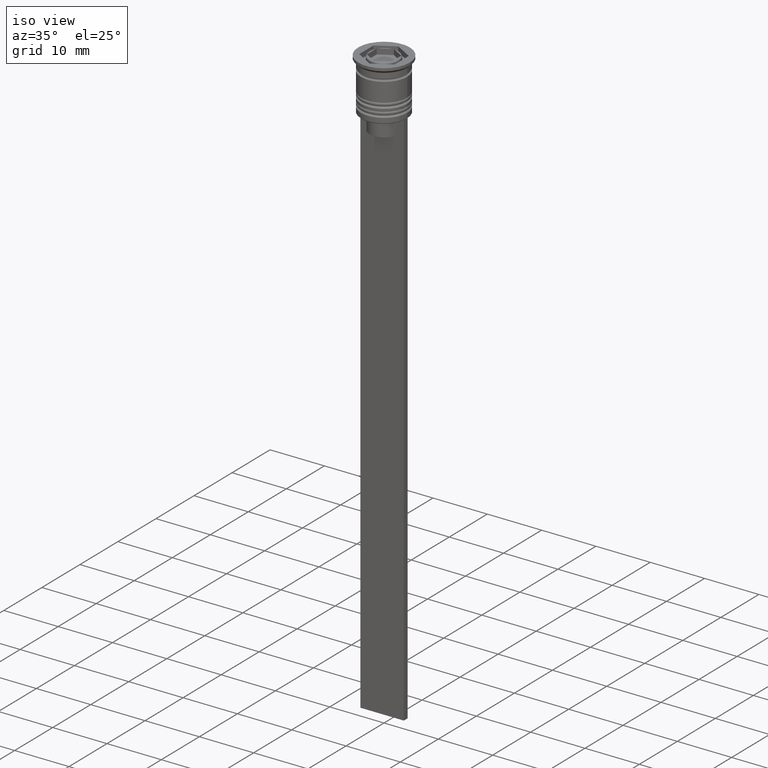
[diagram: clean part render]
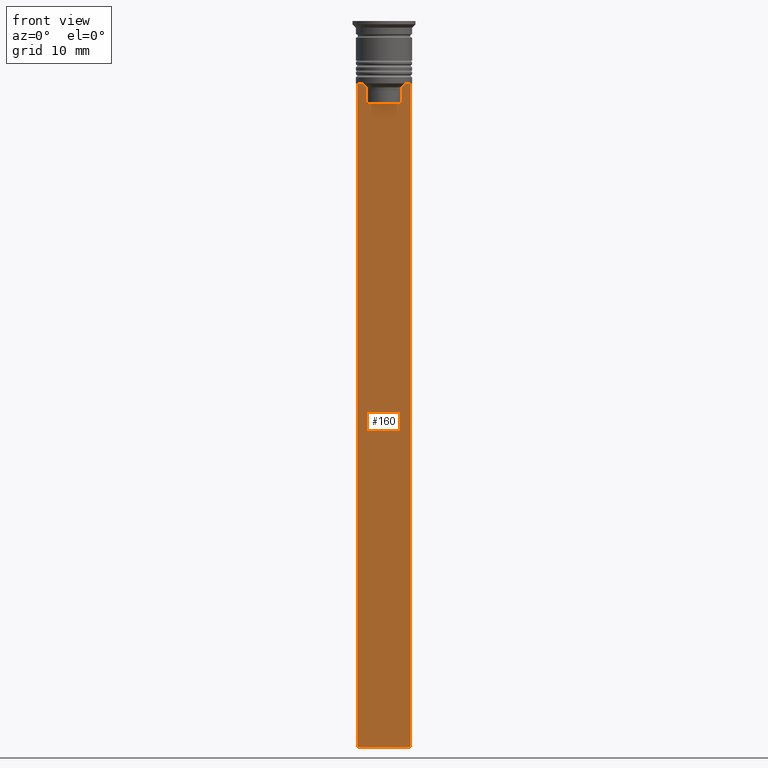
[diagram: tour spotlight — one face highlighted and labeled with its STEP entity id]
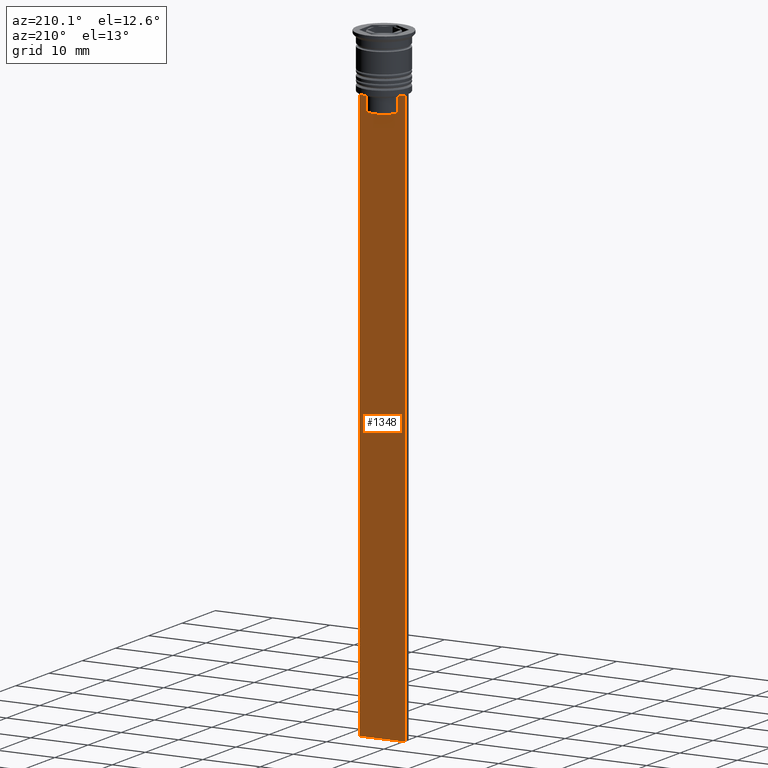
[diagram: tour spotlight — one face highlighted and labeled with its STEP entity id]
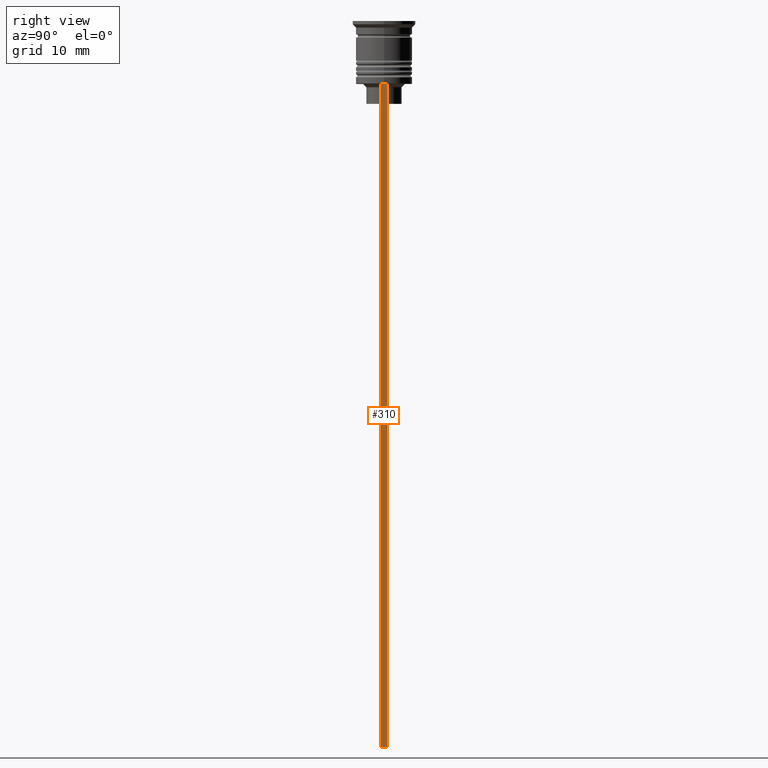
[diagram: tour spotlight — one face highlighted and labeled with its STEP entity id]
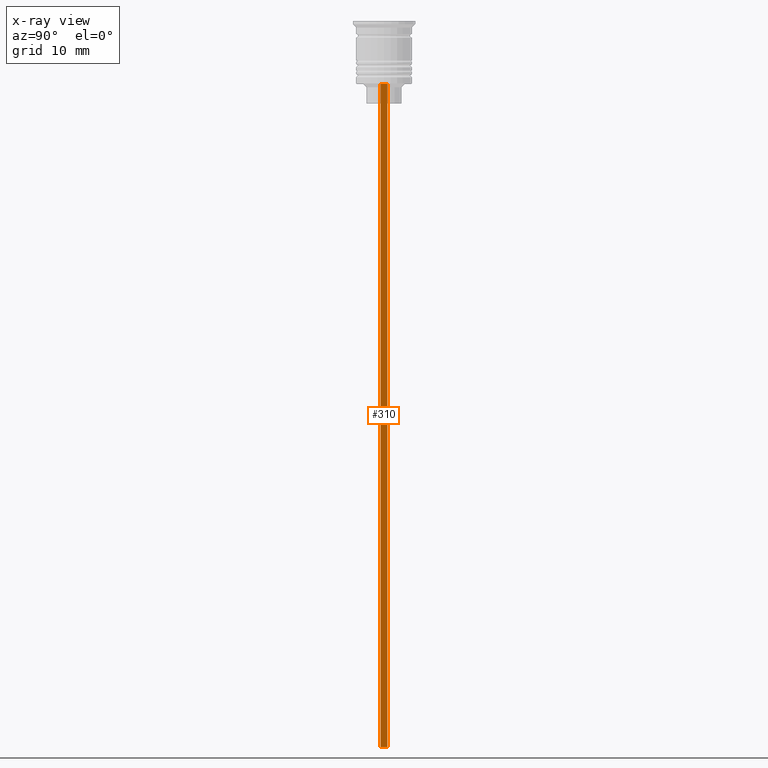
[diagram: x-ray of the same camera — body ghosted, this tour face saturated]
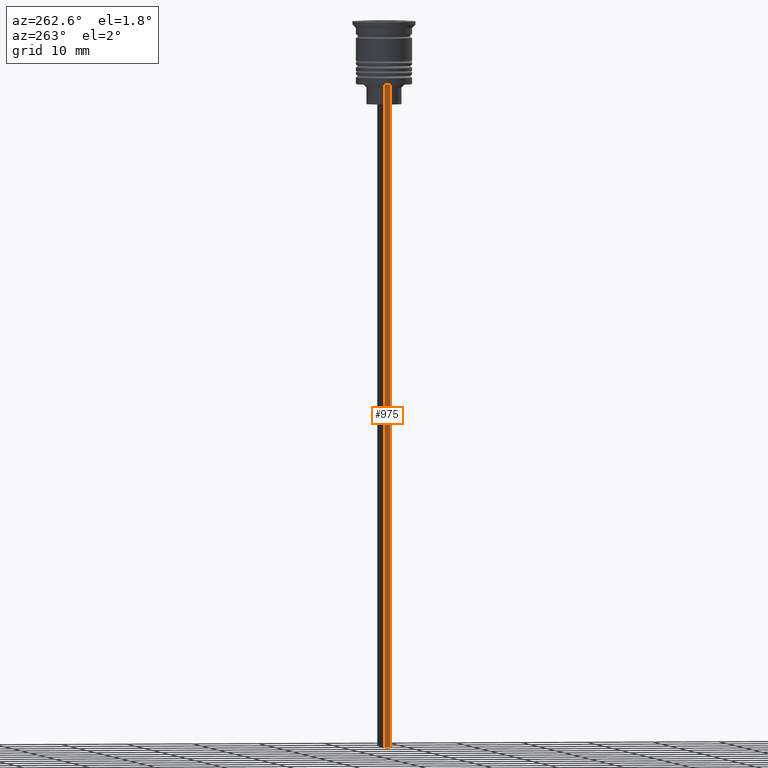
[diagram: tour spotlight — one face highlighted and labeled with its STEP entity id]
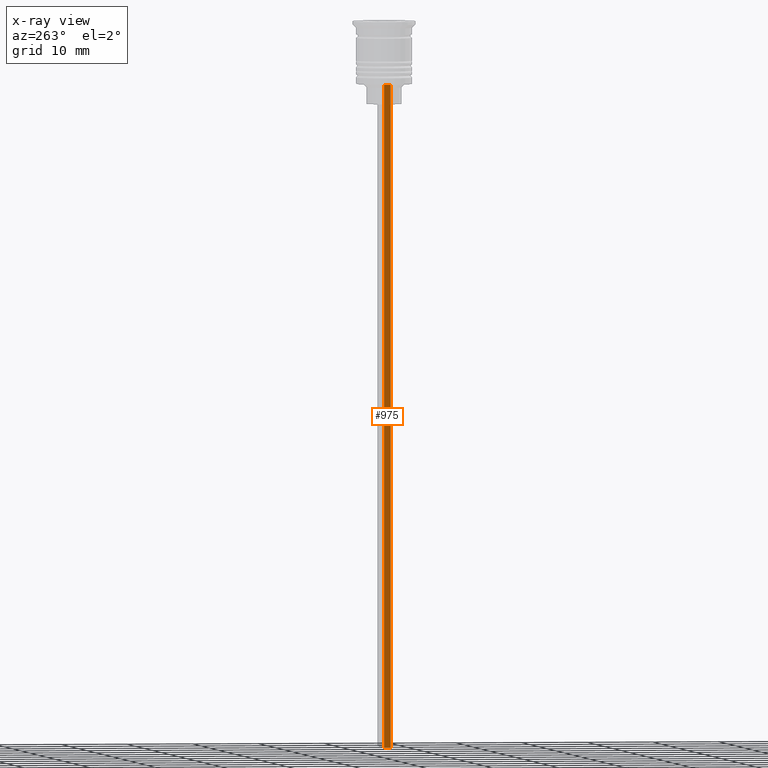
[diagram: x-ray of the same camera — body ghosted, this tour face saturated]
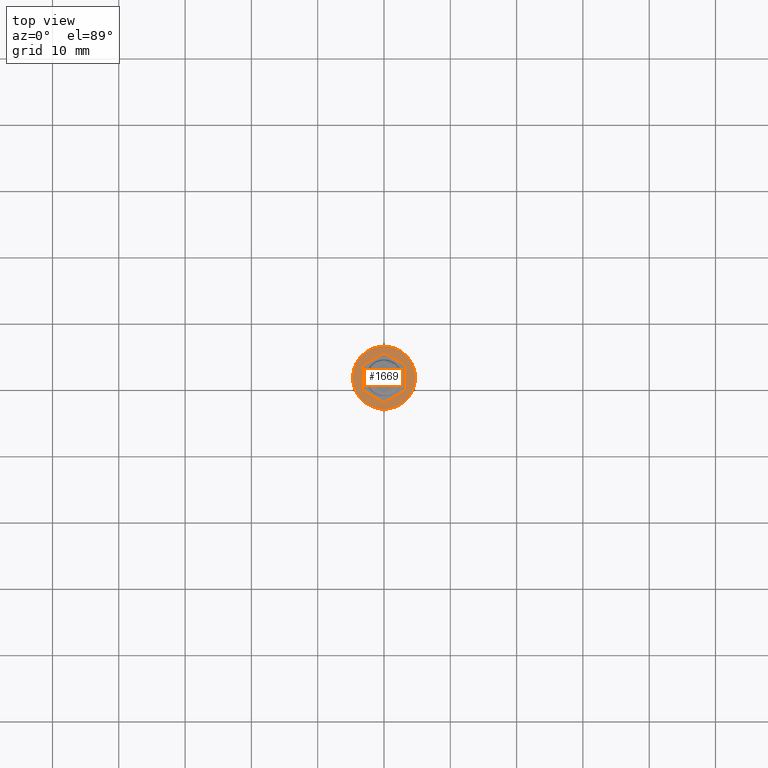
[diagram: tour spotlight — one face highlighted and labeled with its STEP entity id]
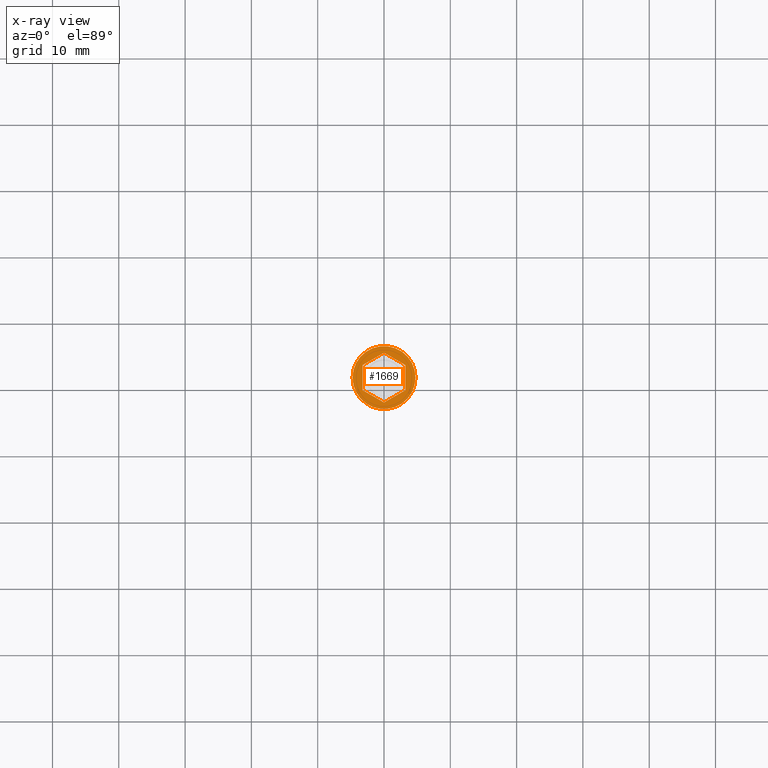
[diagram: x-ray of the same camera — body ghosted, this tour face saturated]
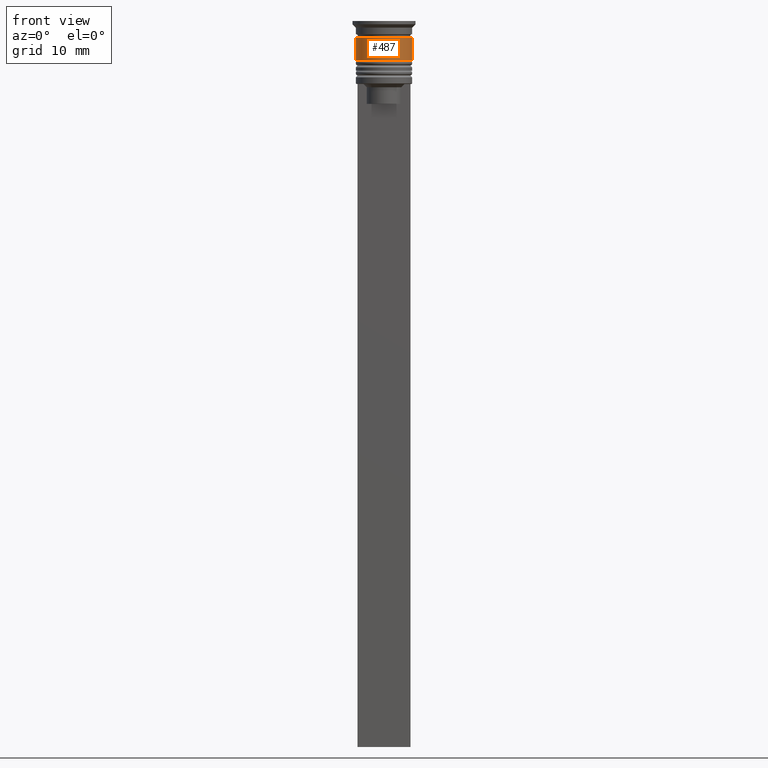
[diagram: tour spotlight — one face highlighted and labeled with its STEP entity id]
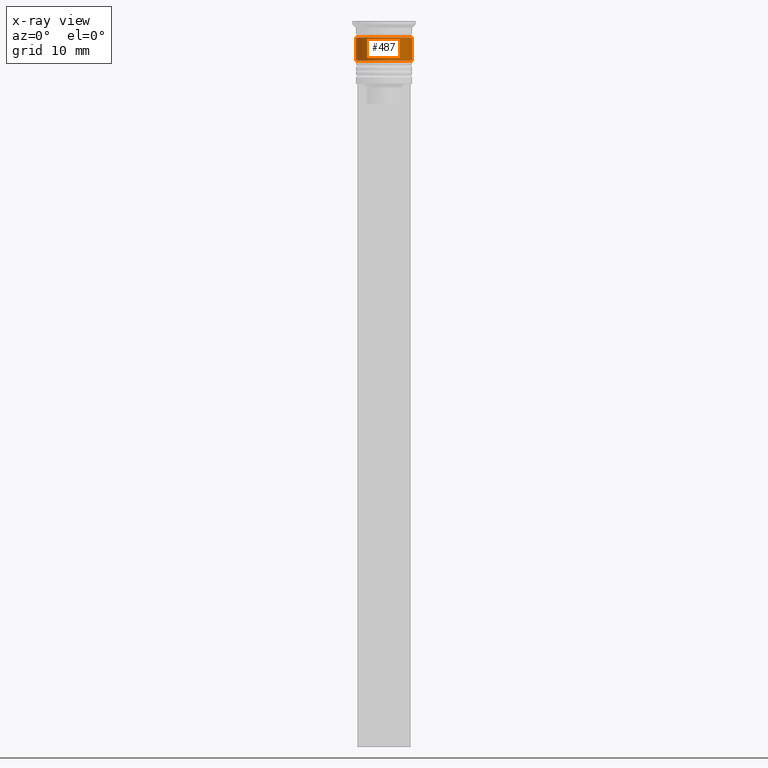
[diagram: x-ray of the same camera — body ghosted, this tour face saturated]
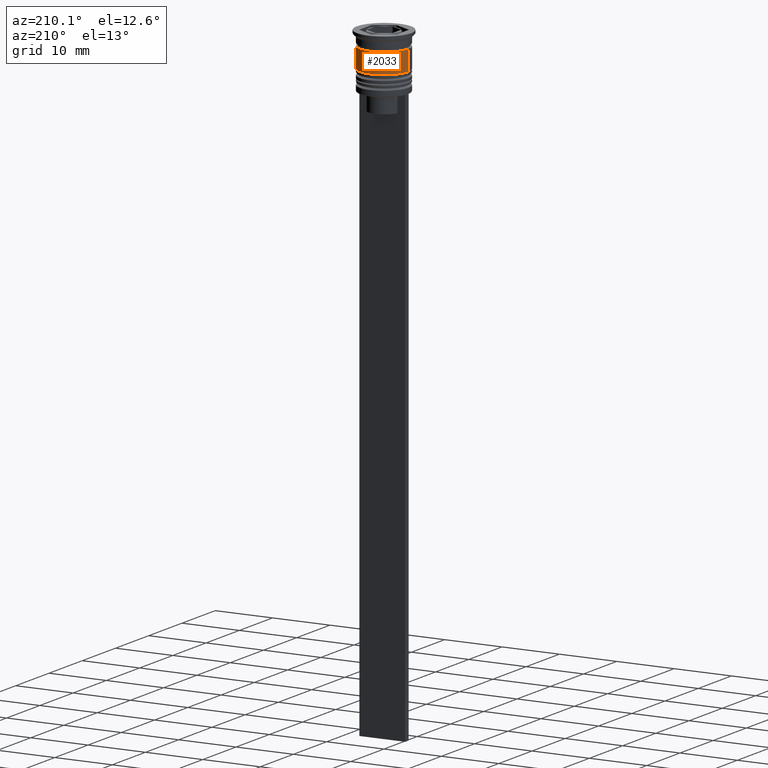
[diagram: tour spotlight — one face highlighted and labeled with its STEP entity id]
A machine part: a face-by-face anatomy tour. The part has 83 B-rep faces; the first image is the clean iso view, then the 7 largest visible faces are spotlighted one at a time (largest first), each with its STEP entity span.

Face 1 — front view, entity #160. In plain terms, the highlighted planar face has unit normal (0, -1, -0).
Definition (entity closure, byte-faithful):
#29 = ORIENTED_EDGE ( 'NONE', *, *, #219, .F. ) ;
#84 = VECTOR ( 'NONE', #498, 1000.000000000000000 ) ;
#95 = CARTESIAN_POINT ( 'NONE',  ( -2.602402735934616906, -0.5000000000000004441, -10.00000000000000178 ) ) ;
#116 = CARTESIAN_POINT ( 'NONE',  ( -2.602402735934616906, -0.5000000000000004441, -10.00000000000000178 ) ) ;
#147 = CARTESIAN_POINT ( 'NONE',  ( 2.602402735934616906, -0.5000000000000004441, -10.00000000000000178 ) ) ;
#160 = ADVANCED_FACE ( 'NONE', ( #1331 ), #609, .T. ) ;
#219 = EDGE_CURVE ( 'NONE', #1419, #1842, #630, .T. ) ;
#243 = VERTEX_POINT ( 'NONE', #116 ) ;
#246 = EDGE_CURVE ( 'NONE', #1842, #802, #1769, .T. ) ;
#249 = CARTESIAN_POINT ( 'NONE',  ( -3.999999999999994671, -0.5000000000000004441, -9.500000000000000000 ) ) ;
#277 = CARTESIAN_POINT ( 'NONE',  ( 4.000000000000005329, -0.5000000000000004441, -9.500000000000000000 ) ) ;
#280 = VECTOR ( 'NONE', #1616, 1000.000000000000000 ) ;
#281 = CARTESIAN_POINT ( 'NONE',  ( 2.602402735934616906, -0.5000000000000004441, -10.00000000000000178 ) ) ;
#290 = DIRECTION ( 'NONE',  ( 0.000000000000000000, 0.000000000000000000, -1.000000000000000000 ) ) ;
#325 = VECTOR ( 'NONE', #1550, 1000.000000000000000 ) ;
#420 = DIRECTION ( 'NONE',  ( 0.000000000000000000, -1.000000000000000000, -0.000000000000000000 ) ) ;
#426 = AXIS2_PLACEMENT_3D ( 'NONE', #1339, #420, #940 ) ;
#498 = DIRECTION ( 'NONE',  ( 1.000000000000000000, 0.000000000000000000, 0.000000000000000000 ) ) ;
#507 = EDGE_LOOP ( 'NONE', ( #1234, #1928, #1048, #1132, #29, #1145, #1780, #1420, #1497, #1200 ) ) ;
#510 = CARTESIAN_POINT ( 'NONE',  ( -3.110064308016796453, -0.5000000000000004441, -9.500000000000000000 ) ) ;
#522 = VERTEX_POINT ( 'NONE', #563 ) ;
#559 = VECTOR ( 'NONE', #1925, 1000.000000000000000 ) ;
#563 = CARTESIAN_POINT ( 'NONE',  ( -3.110064308016796453, -0.5000000000000004441, -9.500000000000000000 ) ) ;
#574 = CARTESIAN_POINT ( 'NONE',  ( 4.000000000000005329, -0.5000000000000004441, -9.500000000000000000 ) ) ;
#609 = PLANE ( 'NONE',  #426 ) ;
#611 = VERTEX_POINT ( 'NONE', #249 ) ;
#630 = LINE ( 'NONE', #1743, #1898 ) ;
#640 = CARTESIAN_POINT ( 'NONE',  ( 3.110064308016796453, -0.5000000000000004441, -9.500000000000000000 ) ) ;
#654 = CARTESIAN_POINT ( 'NONE',  ( 4.000000000000005329, -0.5000000000000004441, -109.5000000000000000 ) ) ;
#662 = EDGE_CURVE ( 'NONE', #611, #522, #1027, .T. ) ;
#781 = CARTESIAN_POINT ( 'NONE',  ( -2.602402735934616906, -0.5000000000000004441, -12.50000000000000000 ) ) ;
#802 = VERTEX_POINT ( 'NONE', #1428 ) ;
#820 = LINE ( 'NONE', #1352, #325 ) ;
#842 = LINE ( 'NONE', #1382, #559 ) ;
#867 = CARTESIAN_POINT ( 'NONE',  ( -2.941047749529104749, -0.5000000000000004441, -9.666873766989334982 ) ) ;
#884 = CARTESIAN_POINT ( 'NONE',  ( -2.771866350855961336, -0.5000000000000004441, -9.833580160334840059 ) ) ;
#940 = DIRECTION ( 'NONE',  ( 0.000000000000000000, 0.000000000000000000, -1.000000000000000000 ) ) ;
#1027 = LINE ( 'NONE', #2316, #2025 ) ;
#1031 = LINE ( 'NONE', #2311, #280 ) ;
#1048 = ORIENTED_EDGE ( 'NONE', *, *, #1861, .T. ) ;
#1057 = LINE ( 'NONE', #2118, #84 ) ;
#1081 = EDGE_CURVE ( 'NONE', #2187, #2136, #1057, .T. ) ;
#1085 = EDGE_CURVE ( 'NONE', #522, #243, #1480, .T. ) ;
#1112 = EDGE_CURVE ( 'NONE', #2136, #2003, #842, .T. ) ;
#1118 = EDGE_CURVE ( 'NONE', #1518, #1419, #2321, .T. ) ;
#1132 = ORIENTED_EDGE ( 'NONE', *, *, #246, .F. ) ;
#1139 = EDGE_CURVE ( 'NONE', #243, #2187, #1031, .T. ) ;
#1145 = ORIENTED_EDGE ( 'NONE', *, *, #1118, .F. ) ;
#1200 = ORIENTED_EDGE ( 'NONE', *, *, #1139, .F. ) ;
#1234 = ORIENTED_EDGE ( 'NONE', *, *, #1085, .F. ) ;
#1331 = FACE_OUTER_BOUND ( 'NONE', #507, .T. ) ;
#1334 = EDGE_CURVE ( 'NONE', #2003, #1518, #2201, .T. ) ;
#1339 = CARTESIAN_POINT ( 'NONE',  ( 4.000000000000005329, -0.5000000000000004441, -1.437742251701450202 ) ) ;
#1351 = VECTOR ( 'NONE', #1381, 1000.000000000000000 ) ;
#1352 = CARTESIAN_POINT ( 'NONE',  ( -3.999999999999994671, -0.5000000000000004441, -1.437742251701450202 ) ) ;
#1381 = DIRECTION ( 'NONE',  ( -1.000000000000000000, 0.000000000000000000, 0.000000000000000000 ) ) ;
#1382 = CARTESIAN_POINT ( 'NONE',  ( 2.602402735934616906, -0.5000000000000004441, 0.000000000000000000 ) ) ;
#1419 = VERTEX_POINT ( 'NONE', #574 ) ;
#1420 = ORIENTED_EDGE ( 'NONE', *, *, #1112, .F. ) ;
#1428 = CARTESIAN_POINT ( 'NONE',  ( -3.999999999999994671, -0.5000000000000004441, -109.5000000000000000 ) ) ;
#1435 = VECTOR ( 'NONE', #1976, 1000.000000000000000 ) ;
#1480 = B_SPLINE_CURVE_WITH_KNOTS ( 'NONE', 3,
 ( #510, #867, #884, #95 ),
 .UNSPECIFIED., .F., .F.,
 ( 4, 4 ),
 ( 0.005378271293598281544, 0.006090816219556000749 ),
 .UNSPECIFIED. ) ;
#1497 = ORIENTED_EDGE ( 'NONE', *, *, #1081, .F. ) ;
#1518 = VERTEX_POINT ( 'NONE', #640 ) ;
#1550 = DIRECTION ( 'NONE',  ( 0.000000000000000000, 0.000000000000000000, -1.000000000000000000 ) ) ;
#1616 = DIRECTION ( 'NONE',  ( 0.000000000000000000, 0.000000000000000000, -1.000000000000000000 ) ) ;
#1626 = CARTESIAN_POINT ( 'NONE',  ( 2.771864055700302476, -0.5000000000000004441, -9.833582414266679450 ) ) ;
#1681 = CARTESIAN_POINT ( 'NONE',  ( 2.602402735934616906, -0.5000000000000004441, -12.50000000000000000 ) ) ;
#1731 = CARTESIAN_POINT ( 'NONE',  ( 3.110064308016796453, -0.5000000000000004441, -9.500000000000000000 ) ) ;
#1737 = CARTESIAN_POINT ( 'NONE',  ( 4.000000000000005329, -0.5000000000000004441, -109.5000000000000000 ) ) ;
#1743 = CARTESIAN_POINT ( 'NONE',  ( 4.000000000000005329, -0.5000000000000004441, -1.437742251701450202 ) ) ;
#1769 = LINE ( 'NONE', #654, #1351 ) ;
#1780 = ORIENTED_EDGE ( 'NONE', *, *, #1334, .F. ) ;
#1842 = VERTEX_POINT ( 'NONE', #1737 ) ;
#1861 = EDGE_CURVE ( 'NONE', #611, #802, #820, .T. ) ;
#1898 = VECTOR ( 'NONE', #290, 1000.000000000000000 ) ;
#1925 = DIRECTION ( 'NONE',  ( -0.000000000000000000, -0.000000000000000000, 1.000000000000000000 ) ) ;
#1928 = ORIENTED_EDGE ( 'NONE', *, *, #662, .F. ) ;
#1976 = DIRECTION ( 'NONE',  ( 1.000000000000000000, 0.000000000000000000, 0.000000000000000000 ) ) ;
#2003 = VERTEX_POINT ( 'NONE', #281 ) ;
#2025 = VECTOR ( 'NONE', #2279, 1000.000000000000000 ) ;
#2118 = CARTESIAN_POINT ( 'NONE',  ( 0.000000000000000000, -0.5000000000000004441, -12.50000000000000000 ) ) ;
#2136 = VERTEX_POINT ( 'NONE', #1681 ) ;
#2187 = VERTEX_POINT ( 'NONE', #781 ) ;
#2201 = B_SPLINE_CURVE_WITH_KNOTS ( 'NONE', 3,
 ( #147, #1626, #2242, #1731 ),
 .UNSPECIFIED., .F., .F.,
 ( 4, 4 ),
 ( 0.01295151922336847811, 0.01367164596165162602 ),
 .UNSPECIFIED. ) ;
#2242 = CARTESIAN_POINT ( 'NONE',  ( 2.941045828809988549, -0.5000000000000004441, -9.666875663357577864 ) ) ;
#2279 = DIRECTION ( 'NONE',  ( 1.000000000000000000, 0.000000000000000000, 0.000000000000000000 ) ) ;
#2311 = CARTESIAN_POINT ( 'NONE',  ( -2.602402735934616906, -0.5000000000000004441, 0.000000000000000000 ) ) ;
#2316 = CARTESIAN_POINT ( 'NONE',  ( 4.000000000000005329, -0.5000000000000004441, -9.500000000000000000 ) ) ;
#2321 = LINE ( 'NONE', #277, #1435 ) ;

Face 2 — auxiliary view, entity #1348. In plain terms, the highlighted planar face has unit normal (0, -1, -0).
Definition (entity closure, byte-faithful):
#17 = EDGE_CURVE ( 'NONE', #405, #533, #2043, .T. ) ;
#44 = FACE_OUTER_BOUND ( 'NONE', #1503, .T. ) ;
#75 = LINE ( 'NONE', #2332, #1289 ) ;
#117 = ORIENTED_EDGE ( 'NONE', *, *, #1705, .T. ) ;
#118 = CARTESIAN_POINT ( 'NONE',  ( -3.110064308016796897, 0.4999999999999995559, -9.500000000000000000 ) ) ;
#155 = VERTEX_POINT ( 'NONE', #1690 ) ;
#188 = VERTEX_POINT ( 'NONE', #642 ) ;
#204 = VECTOR ( 'NONE', #2116, 1000.000000000000000 ) ;
#228 = B_SPLINE_CURVE_WITH_KNOTS ( 'NONE', 3,
 ( #2013, #1089, #2026, #2347 ),
 .UNSPECIFIED., .F., .F.,
 ( 4, 4 ),
 ( 0.01295151922336847637, 0.01367164596165162602 ),
 .UNSPECIFIED. ) ;
#304 = CARTESIAN_POINT ( 'NONE',  ( -2.771866350855961780, 0.4999999999999995559, -9.833580160334840059 ) ) ;
#393 = EDGE_CURVE ( 'NONE', #1565, #405, #228, .T. ) ;
#405 = VERTEX_POINT ( 'NONE', #1832 ) ;
#409 = CARTESIAN_POINT ( 'NONE',  ( 4.000000000000005329, 0.4999999999999995559, -109.5000000000000000 ) ) ;
#423 = ORIENTED_EDGE ( 'NONE', *, *, #1041, .T. ) ;
#459 = ORIENTED_EDGE ( 'NONE', *, *, #393, .T. ) ;
#463 = CARTESIAN_POINT ( 'NONE',  ( -3.110064308016796897, 0.4999999999999995559, -9.500000000000000000 ) ) ;
#465 = LINE ( 'NONE', #1571, #910 ) ;
#476 = VECTOR ( 'NONE', #2250, 1000.000000000000000 ) ;
#486 = CARTESIAN_POINT ( 'NONE',  ( 2.602402735934617350, 0.4999999999999995559, -12.50000000000000000 ) ) ;
#494 = ORIENTED_EDGE ( 'NONE', *, *, #926, .T. ) ;
#528 = ORIENTED_EDGE ( 'NONE', *, *, #618, .T. ) ;
#533 = VERTEX_POINT ( 'NONE', #1296 ) ;
#538 = CARTESIAN_POINT ( 'NONE',  ( 4.000000000000005329, 0.4999999999999995559, -9.500000000000000000 ) ) ;
#567 = ORIENTED_EDGE ( 'NONE', *, *, #17, .T. ) ;
#618 = EDGE_CURVE ( 'NONE', #1122, #1565, #1344, .T. ) ;
#639 = CARTESIAN_POINT ( 'NONE',  ( -2.602402735934617350, 0.4999999999999995559, 0.000000000000000000 ) ) ;
#642 = CARTESIAN_POINT ( 'NONE',  ( -2.602402735934617350, 0.4999999999999995559, -12.50000000000000000 ) ) ;
#661 = CARTESIAN_POINT ( 'NONE',  ( 2.602402735934617350, 0.4999999999999995559, 0.000000000000000000 ) ) ;
#669 = CARTESIAN_POINT ( 'NONE',  ( -3.999999999999994671, 0.4999999999999995559, -109.5000000000000000 ) ) ;
#675 = VERTEX_POINT ( 'NONE', #463 ) ;
#727 = EDGE_CURVE ( 'NONE', #1109, #188, #1581, .T. ) ;
#735 = ORIENTED_EDGE ( 'NONE', *, *, #1153, .T. ) ;
#804 = CARTESIAN_POINT ( 'NONE',  ( 4.000000000000005329, 0.4999999999999995559, -1.437742251701450202 ) ) ;
#814 = DIRECTION ( 'NONE',  ( 0.000000000000000000, 0.000000000000000000, -1.000000000000000000 ) ) ;
#816 = CARTESIAN_POINT ( 'NONE',  ( 4.000000000000005329, 0.4999999999999995559, -1.437742251701450202 ) ) ;
#857 = ORIENTED_EDGE ( 'NONE', *, *, #727, .T. ) ;
#874 = AXIS2_PLACEMENT_3D ( 'NONE', #804, #2074, #814 ) ;
#910 = VECTOR ( 'NONE', #1207, 1000.000000000000000 ) ;
#926 = EDGE_CURVE ( 'NONE', #533, #2199, #1755, .T. ) ;
#990 = DIRECTION ( 'NONE',  ( -0.000000000000000000, -0.000000000000000000, 1.000000000000000000 ) ) ;
#1001 = DIRECTION ( 'NONE',  ( 0.000000000000000000, 0.000000000000000000, -1.000000000000000000 ) ) ;
#1004 = CARTESIAN_POINT ( 'NONE',  ( -2.602402735934617350, 0.4999999999999995559, -10.00000000000000178 ) ) ;
#1041 = EDGE_CURVE ( 'NONE', #188, #1122, #465, .T. ) ;
#1089 = CARTESIAN_POINT ( 'NONE',  ( 2.771864055700302476, 0.4999999999999995559, -9.833582414266677674 ) ) ;
#1109 = VERTEX_POINT ( 'NONE', #1004 ) ;
#1119 = VERTEX_POINT ( 'NONE', #669 ) ;
#1122 = VERTEX_POINT ( 'NONE', #486 ) ;
#1133 = VECTOR ( 'NONE', #990, 1000.000000000000000 ) ;
#1153 = EDGE_CURVE ( 'NONE', #675, #1109, #1913, .T. ) ;
#1207 = DIRECTION ( 'NONE',  ( 1.000000000000000000, 0.000000000000000000, 0.000000000000000000 ) ) ;
#1233 = ORIENTED_EDGE ( 'NONE', *, *, #1530, .F. ) ;
#1277 = LINE ( 'NONE', #1468, #2258 ) ;
#1289 = VECTOR ( 'NONE', #1001, 1000.000000000000000 ) ;
#1296 = CARTESIAN_POINT ( 'NONE',  ( 4.000000000000005329, 0.4999999999999995559, -9.500000000000000000 ) ) ;
#1338 = EDGE_CURVE ( 'NONE', #2199, #1119, #1812, .T. ) ;
#1344 = LINE ( 'NONE', #661, #1133 ) ;
#1348 = ADVANCED_FACE ( 'NONE', ( #44 ), #1697, .F. ) ;
#1367 = DIRECTION ( 'NONE',  ( 0.000000000000000000, 0.000000000000000000, -1.000000000000000000 ) ) ;
#1388 = VECTOR ( 'NONE', #2030, 1000.000000000000000 ) ;
#1468 = CARTESIAN_POINT ( 'NONE',  ( 4.000000000000005329, 0.4999999999999995559, -9.500000000000000000 ) ) ;
#1503 = EDGE_LOOP ( 'NONE', ( #117, #735, #857, #423, #528, #459, #567, #494, #1609, #1233 ) ) ;
#1530 = EDGE_CURVE ( 'NONE', #155, #1119, #75, .T. ) ;
#1565 = VERTEX_POINT ( 'NONE', #2115 ) ;
#1571 = CARTESIAN_POINT ( 'NONE',  ( 0.000000000000000000, 0.4999999999999995559, -12.50000000000000000 ) ) ;
#1581 = LINE ( 'NONE', #639, #1749 ) ;
#1604 = CARTESIAN_POINT ( 'NONE',  ( -2.602402735934617350, 0.4999999999999995559, -10.00000000000000178 ) ) ;
#1609 = ORIENTED_EDGE ( 'NONE', *, *, #1338, .T. ) ;
#1690 = CARTESIAN_POINT ( 'NONE',  ( -3.999999999999994671, 0.4999999999999997780, -9.500000000000000000 ) ) ;
#1697 = PLANE ( 'NONE',  #874 ) ;
#1705 = EDGE_CURVE ( 'NONE', #155, #675, #1277, .T. ) ;
#1749 = VECTOR ( 'NONE', #1367, 1000.000000000000000 ) ;
#1755 = LINE ( 'NONE', #816, #204 ) ;
#1812 = LINE ( 'NONE', #409, #476 ) ;
#1832 = CARTESIAN_POINT ( 'NONE',  ( 3.110064308016796897, 0.4999999999999995559, -9.500000000000000000 ) ) ;
#1913 = B_SPLINE_CURVE_WITH_KNOTS ( 'NONE', 3,
 ( #118, #2348, #304, #1604 ),
 .UNSPECIFIED., .F., .F.,
 ( 4, 4 ),
 ( 0.005378271293598279809, 0.006090816219555997280 ),
 .UNSPECIFIED. ) ;
#1986 = DIRECTION ( 'NONE',  ( 1.000000000000000000, 0.000000000000000000, 0.000000000000000000 ) ) ;
#2013 = CARTESIAN_POINT ( 'NONE',  ( 2.602402735934617350, 0.4999999999999995559, -10.00000000000000178 ) ) ;
#2026 = CARTESIAN_POINT ( 'NONE',  ( 2.941045828809989438, 0.4999999999999995559, -9.666875663357577864 ) ) ;
#2030 = DIRECTION ( 'NONE',  ( 1.000000000000000000, 0.000000000000000000, 0.000000000000000000 ) ) ;
#2043 = LINE ( 'NONE', #538, #1388 ) ;
#2074 = DIRECTION ( 'NONE',  ( 0.000000000000000000, -1.000000000000000000, -0.000000000000000000 ) ) ;
#2076 = CARTESIAN_POINT ( 'NONE',  ( 4.000000000000005329, 0.4999999999999995559, -109.5000000000000000 ) ) ;
#2115 = CARTESIAN_POINT ( 'NONE',  ( 2.602402735934617350, 0.4999999999999995559, -10.00000000000000178 ) ) ;
#2116 = DIRECTION ( 'NONE',  ( 0.000000000000000000, 0.000000000000000000, -1.000000000000000000 ) ) ;
#2199 = VERTEX_POINT ( 'NONE', #2076 ) ;
#2250 = DIRECTION ( 'NONE',  ( -1.000000000000000000, 0.000000000000000000, 0.000000000000000000 ) ) ;
#2258 = VECTOR ( 'NONE', #1986, 1000.000000000000000 ) ;
#2332 = CARTESIAN_POINT ( 'NONE',  ( -3.999999999999994671, 0.4999999999999995559, -1.437742251701450202 ) ) ;
#2347 = CARTESIAN_POINT ( 'NONE',  ( 3.110064308016796897, 0.4999999999999995559, -9.500000000000000000 ) ) ;
#2348 = CARTESIAN_POINT ( 'NONE',  ( -2.941047749529105193, 0.4999999999999995559, -9.666873766989334982 ) ) ;

Face 3 — right view, entity #310. An x-ray twin of the same camera follows (body ghosted, this face saturated) — the face is partly hidden behind the body. In plain terms, the highlighted planar face has unit normal (-1, 0, 0).
Definition (entity closure, byte-faithful):
#77 = AXIS2_PLACEMENT_3D ( 'NONE', #1962, #302, #1040 ) ;
#204 = VECTOR ( 'NONE', #2116, 1000.000000000000000 ) ;
#219 = EDGE_CURVE ( 'NONE', #1419, #1842, #630, .T. ) ;
#224 = ORIENTED_EDGE ( 'NONE', *, *, #926, .F. ) ;
#290 = DIRECTION ( 'NONE',  ( 0.000000000000000000, 0.000000000000000000, -1.000000000000000000 ) ) ;
#300 = DIRECTION ( 'NONE',  ( 0.000000000000000000, 1.000000000000000000, 0.000000000000000000 ) ) ;
#302 = DIRECTION ( 'NONE',  ( -1.000000000000000000, 0.000000000000000000, 0.000000000000000000 ) ) ;
#310 = ADVANCED_FACE ( 'NONE', ( #666 ), #484, .F. ) ;
#484 = PLANE ( 'NONE',  #77 ) ;
#533 = VERTEX_POINT ( 'NONE', #1296 ) ;
#574 = CARTESIAN_POINT ( 'NONE',  ( 4.000000000000005329, -0.5000000000000004441, -9.500000000000000000 ) ) ;
#630 = LINE ( 'NONE', #1743, #1898 ) ;
#666 = FACE_OUTER_BOUND ( 'NONE', #787, .T. ) ;
#754 = CARTESIAN_POINT ( 'NONE',  ( 4.000000000000005329, -0.5000000000000004441, -9.500000000000000000 ) ) ;
#787 = EDGE_LOOP ( 'NONE', ( #224, #2312, #1957, #1761 ) ) ;
#816 = CARTESIAN_POINT ( 'NONE',  ( 4.000000000000005329, 0.4999999999999995559, -1.437742251701450202 ) ) ;
#828 = VECTOR ( 'NONE', #300, 1000.000000000000000 ) ;
#926 = EDGE_CURVE ( 'NONE', #533, #2199, #1755, .T. ) ;
#1040 = DIRECTION ( 'NONE',  ( 0.000000000000000000, 0.000000000000000000, 1.000000000000000000 ) ) ;
#1137 = VECTOR ( 'NONE', #1375, 1000.000000000000000 ) ;
#1177 = LINE ( 'NONE', #754, #1137 ) ;
#1296 = CARTESIAN_POINT ( 'NONE',  ( 4.000000000000005329, 0.4999999999999995559, -9.500000000000000000 ) ) ;
#1375 = DIRECTION ( 'NONE',  ( 0.000000000000000000, -1.000000000000000000, 0.000000000000000000 ) ) ;
#1419 = VERTEX_POINT ( 'NONE', #574 ) ;
#1596 = EDGE_CURVE ( 'NONE', #1842, #2199, #1947, .T. ) ;
#1737 = CARTESIAN_POINT ( 'NONE',  ( 4.000000000000005329, -0.5000000000000004441, -109.5000000000000000 ) ) ;
#1743 = CARTESIAN_POINT ( 'NONE',  ( 4.000000000000005329, -0.5000000000000004441, -1.437742251701450202 ) ) ;
#1755 = LINE ( 'NONE', #816, #204 ) ;
#1761 = ORIENTED_EDGE ( 'NONE', *, *, #1596, .T. ) ;
#1762 = EDGE_CURVE ( 'NONE', #533, #1419, #1177, .T. ) ;
#1842 = VERTEX_POINT ( 'NONE', #1737 ) ;
#1898 = VECTOR ( 'NONE', #290, 1000.000000000000000 ) ;
#1947 = LINE ( 'NONE', #1960, #828 ) ;
#1957 = ORIENTED_EDGE ( 'NONE', *, *, #219, .T. ) ;
#1960 = CARTESIAN_POINT ( 'NONE',  ( 4.000000000000005329, -0.5000000000000004441, -109.5000000000000000 ) ) ;
#1962 = CARTESIAN_POINT ( 'NONE',  ( 4.000000000000005329, -0.5000000000000004441, -1.437742251701450202 ) ) ;
#2076 = CARTESIAN_POINT ( 'NONE',  ( 4.000000000000005329, 0.4999999999999995559, -109.5000000000000000 ) ) ;
#2116 = DIRECTION ( 'NONE',  ( 0.000000000000000000, 0.000000000000000000, -1.000000000000000000 ) ) ;
#2199 = VERTEX_POINT ( 'NONE', #2076 ) ;
#2312 = ORIENTED_EDGE ( 'NONE', *, *, #1762, .T. ) ;

Face 4 — auxiliary view, entity #975. An x-ray twin of the same camera follows (body ghosted, this face saturated) — the face is partly hidden behind the body. In plain terms, the highlighted planar face has unit normal (-1, 0, 0).
Definition (entity closure, byte-faithful):
#75 = LINE ( 'NONE', #2332, #1289 ) ;
#138 = CARTESIAN_POINT ( 'NONE',  ( -3.999999999999994671, -0.5000000000000004441, -109.5000000000000000 ) ) ;
#155 = VERTEX_POINT ( 'NONE', #1690 ) ;
#199 = DIRECTION ( 'NONE',  ( 0.000000000000000000, -1.000000000000000000, 0.000000000000000000 ) ) ;
#249 = CARTESIAN_POINT ( 'NONE',  ( -3.999999999999994671, -0.5000000000000004441, -9.500000000000000000 ) ) ;
#293 = DIRECTION ( 'NONE',  ( 0.000000000000000000, 1.000000000000000000, 0.000000000000000000 ) ) ;
#325 = VECTOR ( 'NONE', #1550, 1000.000000000000000 ) ;
#455 = FACE_OUTER_BOUND ( 'NONE', #620, .T. ) ;
#483 = DIRECTION ( 'NONE',  ( 0.000000000000000000, 0.000000000000000000, 1.000000000000000000 ) ) ;
#611 = VERTEX_POINT ( 'NONE', #249 ) ;
#620 = EDGE_LOOP ( 'NONE', ( #725, #1335, #1966, #1846 ) ) ;
#669 = CARTESIAN_POINT ( 'NONE',  ( -3.999999999999994671, 0.4999999999999995559, -109.5000000000000000 ) ) ;
#670 = LINE ( 'NONE', #138, #1023 ) ;
#725 = ORIENTED_EDGE ( 'NONE', *, *, #2095, .F. ) ;
#802 = VERTEX_POINT ( 'NONE', #1428 ) ;
#820 = LINE ( 'NONE', #1352, #325 ) ;
#975 = ADVANCED_FACE ( 'NONE', ( #455 ), #1002, .T. ) ;
#1001 = DIRECTION ( 'NONE',  ( 0.000000000000000000, 0.000000000000000000, -1.000000000000000000 ) ) ;
#1002 = PLANE ( 'NONE',  #1553 ) ;
#1023 = VECTOR ( 'NONE', #293, 1000.000000000000000 ) ;
#1039 = CARTESIAN_POINT ( 'NONE',  ( -3.999999999999994671, -0.5000000000000004441, -1.437742251701450202 ) ) ;
#1119 = VERTEX_POINT ( 'NONE', #669 ) ;
#1254 = VECTOR ( 'NONE', #199, 1000.000000000000000 ) ;
#1273 = CARTESIAN_POINT ( 'NONE',  ( -3.999999999999994671, -0.5000000000000004441, -9.500000000000000000 ) ) ;
#1289 = VECTOR ( 'NONE', #1001, 1000.000000000000000 ) ;
#1335 = ORIENTED_EDGE ( 'NONE', *, *, #1530, .T. ) ;
#1352 = CARTESIAN_POINT ( 'NONE',  ( -3.999999999999994671, -0.5000000000000004441, -1.437742251701450202 ) ) ;
#1393 = DIRECTION ( 'NONE',  ( -1.000000000000000000, 0.000000000000000000, 0.000000000000000000 ) ) ;
#1428 = CARTESIAN_POINT ( 'NONE',  ( -3.999999999999994671, -0.5000000000000004441, -109.5000000000000000 ) ) ;
#1530 = EDGE_CURVE ( 'NONE', #155, #1119, #75, .T. ) ;
#1550 = DIRECTION ( 'NONE',  ( 0.000000000000000000, 0.000000000000000000, -1.000000000000000000 ) ) ;
#1553 = AXIS2_PLACEMENT_3D ( 'NONE', #1039, #1393, #483 ) ;
#1690 = CARTESIAN_POINT ( 'NONE',  ( -3.999999999999994671, 0.4999999999999997780, -9.500000000000000000 ) ) ;
#1846 = ORIENTED_EDGE ( 'NONE', *, *, #1861, .F. ) ;
#1861 = EDGE_CURVE ( 'NONE', #611, #802, #820, .T. ) ;
#1869 = LINE ( 'NONE', #1273, #1254 ) ;
#1966 = ORIENTED_EDGE ( 'NONE', *, *, #2305, .F. ) ;
#2095 = EDGE_CURVE ( 'NONE', #155, #611, #1869, .T. ) ;
#2305 = EDGE_CURVE ( 'NONE', #802, #1119, #670, .T. ) ;
#2332 = CARTESIAN_POINT ( 'NONE',  ( -3.999999999999994671, 0.4999999999999995559, -1.437742251701450202 ) ) ;

Face 5 — top view, entity #1669. An x-ray twin of the same camera follows (body ghosted, this face saturated) — the face is partly hidden behind the body. In plain terms, the highlighted planar face has unit normal (0, -0, 1).
Definition (entity closure, byte-faithful):
#41 = EDGE_CURVE ( 'NONE', #412, #294, #586, .T. ) ;
#182 = EDGE_LOOP ( 'NONE', ( #2077, #622 ) ) ;
#257 = ORIENTED_EDGE ( 'NONE', *, *, #2054, .F. ) ;
#267 = LINE ( 'NONE', #1072, #564 ) ;
#278 = DIRECTION ( 'NONE',  ( 1.000000000000000000, 0.000000000000000000, 0.000000000000000000 ) ) ;
#294 = VERTEX_POINT ( 'NONE', #2285 ) ;
#329 = ORIENTED_EDGE ( 'NONE', *, *, #2349, .F. ) ;
#344 = CARTESIAN_POINT ( 'NONE',  ( -2.112280747572084180E-16, -3.752776749732567918, 0.000000000000000000 ) ) ;
#348 = DIRECTION ( 'NONE',  ( 0.8660254037844387076, -0.4999999999999998890, 0.000000000000000000 ) ) ;
#412 = VERTEX_POINT ( 'NONE', #1461 ) ;
#458 = CARTESIAN_POINT ( 'NONE',  ( 0.000000000000000000, 0.000000000000000000, 0.000000000000000000 ) ) ;
#480 = VECTOR ( 'NONE', #1692, 1000.000000000000000 ) ;
#499 = CARTESIAN_POINT ( 'NONE',  ( 3.250000000000000444, -1.876388374866283515, 0.000000000000000000 ) ) ;
#552 = VECTOR ( 'NONE', #1316, 1000.000000000000000 ) ;
#564 = VECTOR ( 'NONE', #1386, 1000.000000000000000 ) ;
#578 = ORIENTED_EDGE ( 'NONE', *, *, #1882, .F. ) ;
#586 = LINE ( 'NONE', #1879, #552 ) ;
#622 = ORIENTED_EDGE ( 'NONE', *, *, #2381, .T. ) ;
#637 = DIRECTION ( 'NONE',  ( 1.000000000000000000, 0.000000000000000000, 0.000000000000000000 ) ) ;
#673 = CARTESIAN_POINT ( 'NONE',  ( 4.750000000000000000, 0.000000000000000000, 0.000000000000000000 ) ) ;
#714 = CIRCLE ( 'NONE', #1557, 4.750000000000000000 ) ;
#740 = LINE ( 'NONE', #1807, #948 ) ;
#799 = ORIENTED_EDGE ( 'NONE', *, *, #883, .F. ) ;
#835 = CARTESIAN_POINT ( 'NONE',  ( -4.750000000000000000, 5.817072295949927426E-16, 0.000000000000000000 ) ) ;
#883 = EDGE_CURVE ( 'NONE', #1197, #412, #2164, .T. ) ;
#905 = CARTESIAN_POINT ( 'NONE',  ( 3.250000000000000444, -1.876388374866283515, 0.000000000000000000 ) ) ;
#928 = DIRECTION ( 'NONE',  ( 1.000000000000000000, 0.000000000000000000, 0.000000000000000000 ) ) ;
#948 = VECTOR ( 'NONE', #348, 1000.000000000000114 ) ;
#986 = VERTEX_POINT ( 'NONE', #1192 ) ;
#1066 = FACE_OUTER_BOUND ( 'NONE', #182, .T. ) ;
#1072 = CARTESIAN_POINT ( 'NONE',  ( -3.250000000000000444, 1.876388374866282627, 0.000000000000000000 ) ) ;
#1087 = PLANE ( 'NONE',  #2140 ) ;
#1192 = CARTESIAN_POINT ( 'NONE',  ( -2.112280747572084180E-16, -3.752776749732567918, 0.000000000000000000 ) ) ;
#1197 = VERTEX_POINT ( 'NONE', #2158 ) ;
#1223 = VERTEX_POINT ( 'NONE', #905 ) ;
#1225 = CARTESIAN_POINT ( 'NONE',  ( -3.250000000000000444, -1.876388374866284625, 0.000000000000000000 ) ) ;
#1316 = DIRECTION ( 'NONE',  ( -0.8660254037844385966, -0.5000000000000001110, 0.000000000000000000 ) ) ;
#1365 = DIRECTION ( 'NONE',  ( -0.000000000000000000, -0.000000000000000000, 1.000000000000000000 ) ) ;
#1386 = DIRECTION ( 'NONE',  ( 0.000000000000000000, -1.000000000000000000, 0.000000000000000000 ) ) ;
#1407 = DIRECTION ( 'NONE',  ( -0.8660254037844388186, 0.4999999999999997224, 0.000000000000000000 ) ) ;
#1418 = CARTESIAN_POINT ( 'NONE',  ( 0.000000000000000000, 0.000000000000000000, 0.000000000000000000 ) ) ;
#1458 = FACE_BOUND ( 'NONE', #1978, .T. ) ;
#1461 = CARTESIAN_POINT ( 'NONE',  ( 0.000000000000000000, 3.752776749732567030, 0.000000000000000000 ) ) ;
#1481 = LINE ( 'NONE', #344, #480 ) ;
#1488 = CIRCLE ( 'NONE', #1803, 4.750000000000000000 ) ;
#1557 = AXIS2_PLACEMENT_3D ( 'NONE', #1726, #1365, #637 ) ;
#1587 = DIRECTION ( 'NONE',  ( 2.311253228826398661E-16, 1.000000000000000000, 0.000000000000000000 ) ) ;
#1594 = CARTESIAN_POINT ( 'NONE',  ( 3.250000000000001332, 1.876388374866284181, 0.000000000000000000 ) ) ;
#1635 = DIRECTION ( 'NONE',  ( 0.000000000000000000, -0.000000000000000000, 1.000000000000000000 ) ) ;
#1662 = EDGE_CURVE ( 'NONE', #2278, #986, #740, .T. ) ;
#1669 = ADVANCED_FACE ( 'NONE', ( #1458, #1066 ), #1087, .T. ) ;
#1692 = DIRECTION ( 'NONE',  ( 0.8660254037844385966, 0.5000000000000001110, 0.000000000000000000 ) ) ;
#1726 = CARTESIAN_POINT ( 'NONE',  ( 0.000000000000000000, 0.000000000000000000, 0.000000000000000000 ) ) ;
#1803 = AXIS2_PLACEMENT_3D ( 'NONE', #458, #2148, #278 ) ;
#1807 = CARTESIAN_POINT ( 'NONE',  ( -3.250000000000000444, -1.876388374866284625, 0.000000000000000000 ) ) ;
#1824 = VERTEX_POINT ( 'NONE', #835 ) ;
#1853 = EDGE_CURVE ( 'NONE', #2012, #1824, #714, .T. ) ;
#1879 = CARTESIAN_POINT ( 'NONE',  ( 0.000000000000000000, 3.752776749732567030, 0.000000000000000000 ) ) ;
#1882 = EDGE_CURVE ( 'NONE', #294, #2278, #267, .T. ) ;
#1909 = VECTOR ( 'NONE', #1587, 1000.000000000000000 ) ;
#1924 = ORIENTED_EDGE ( 'NONE', *, *, #41, .F. ) ;
#1965 = LINE ( 'NONE', #499, #1909 ) ;
#1978 = EDGE_LOOP ( 'NONE', ( #799, #329, #257, #2069, #578, #1924 ) ) ;
#2012 = VERTEX_POINT ( 'NONE', #673 ) ;
#2054 = EDGE_CURVE ( 'NONE', #986, #1223, #1481, .T. ) ;
#2069 = ORIENTED_EDGE ( 'NONE', *, *, #1662, .F. ) ;
#2077 = ORIENTED_EDGE ( 'NONE', *, *, #1853, .T. ) ;
#2140 = AXIS2_PLACEMENT_3D ( 'NONE', #1418, #1635, #928 ) ;
#2148 = DIRECTION ( 'NONE',  ( -0.000000000000000000, -0.000000000000000000, 1.000000000000000000 ) ) ;
#2158 = CARTESIAN_POINT ( 'NONE',  ( 3.250000000000001332, 1.876388374866284181, 0.000000000000000000 ) ) ;
#2164 = LINE ( 'NONE', #1594, #2253 ) ;
#2253 = VECTOR ( 'NONE', #1407, 1000.000000000000000 ) ;
#2278 = VERTEX_POINT ( 'NONE', #1225 ) ;
#2285 = CARTESIAN_POINT ( 'NONE',  ( -3.250000000000000444, 1.876388374866282627, 0.000000000000000000 ) ) ;
#2349 = EDGE_CURVE ( 'NONE', #1223, #1197, #1965, .T. ) ;
#2381 = EDGE_CURVE ( 'NONE', #1824, #2012, #1488, .T. ) ;

Face 6 — front view, entity #487. An x-ray twin of the same camera follows (body ghosted, this face saturated) — the face is partly hidden behind the body. In plain terms, the highlighted cylindrical surface (edge-blend (fillet) strip) has radius 4.25 mm, axis along (-0, -0, 1).
Definition (entity closure, byte-faithful):
#65 = CARTESIAN_POINT ( 'NONE',  ( -4.250000000000000888, 5.204748896376251685E-16, -6.000000000000000000 ) ) ;
#85 = DIRECTION ( 'NONE',  ( 1.000000000000000000, 0.000000000000000000, 0.000000000000000000 ) ) ;
#166 = DIRECTION ( 'NONE',  ( -0.000000000000000000, -0.000000000000000000, 1.000000000000000000 ) ) ;
#256 = CARTESIAN_POINT ( 'NONE',  ( 0.000000000000000000, 0.000000000000000000, -2.500000000000000000 ) ) ;
#287 = DIRECTION ( 'NONE',  ( -0.000000000000000000, -0.000000000000000000, 1.000000000000000000 ) ) ;
#335 = VERTEX_POINT ( 'NONE', #2168 ) ;
#404 = VECTOR ( 'NONE', #1121, 1000.000000000000000 ) ;
#487 = ADVANCED_FACE ( 'NONE', ( #1687 ), #1125, .T. ) ;
#569 = LINE ( 'NONE', #772, #404 ) ;
#589 = ORIENTED_EDGE ( 'NONE', *, *, #712, .T. ) ;
#594 = DIRECTION ( 'NONE',  ( -0.000000000000000000, -0.000000000000000000, 1.000000000000000000 ) ) ;
#689 = CARTESIAN_POINT ( 'NONE',  ( 4.250000000000000000, 0.000000000000000000, 0.000000000000000000 ) ) ;
#712 = EDGE_CURVE ( 'NONE', #1460, #335, #1901, .T. ) ;
#726 = LINE ( 'NONE', #689, #1940 ) ;
#772 = CARTESIAN_POINT ( 'NONE',  ( -4.250000000000000000, 5.204748896376250699E-16, 0.000000000000000000 ) ) ;
#848 = DIRECTION ( 'NONE',  ( 1.000000000000000000, 0.000000000000000000, 0.000000000000000000 ) ) ;
#851 = EDGE_CURVE ( 'NONE', #335, #1209, #726, .T. ) ;
#866 = AXIS2_PLACEMENT_3D ( 'NONE', #1556, #287, #848 ) ;
#976 = AXIS2_PLACEMENT_3D ( 'NONE', #1507, #594, #1490 ) ;
#1007 = DIRECTION ( 'NONE',  ( -0.000000000000000000, -0.000000000000000000, 1.000000000000000000 ) ) ;
#1025 = ORIENTED_EDGE ( 'NONE', *, *, #1811, .F. ) ;
#1121 = DIRECTION ( 'NONE',  ( -0.000000000000000000, -0.000000000000000000, 1.000000000000000000 ) ) ;
#1125 = CYLINDRICAL_SURFACE ( 'NONE', #976, 4.250000000000000000 ) ;
#1209 = VERTEX_POINT ( 'NONE', #1675 ) ;
#1460 = VERTEX_POINT ( 'NONE', #65 ) ;
#1490 = DIRECTION ( 'NONE',  ( 1.000000000000000000, 0.000000000000000000, 0.000000000000000000 ) ) ;
#1507 = CARTESIAN_POINT ( 'NONE',  ( 0.000000000000000000, 0.000000000000000000, 0.000000000000000000 ) ) ;
#1556 = CARTESIAN_POINT ( 'NONE',  ( 0.000000000000000000, 0.000000000000000000, -6.000000000000000000 ) ) ;
#1568 = VERTEX_POINT ( 'NONE', #1754 ) ;
#1589 = EDGE_LOOP ( 'NONE', ( #1858, #589, #1831, #1025 ) ) ;
#1675 = CARTESIAN_POINT ( 'NONE',  ( 4.250000000000000000, 0.000000000000000000, -2.500000000000000000 ) ) ;
#1687 = FACE_OUTER_BOUND ( 'NONE', #1589, .T. ) ;
#1753 = AXIS2_PLACEMENT_3D ( 'NONE', #256, #1007, #85 ) ;
#1754 = CARTESIAN_POINT ( 'NONE',  ( -4.250000000000000000, 5.204748896376250699E-16, -2.500000000000000000 ) ) ;
#1811 = EDGE_CURVE ( 'NONE', #1568, #1209, #2035, .T. ) ;
#1831 = ORIENTED_EDGE ( 'NONE', *, *, #851, .T. ) ;
#1858 = ORIENTED_EDGE ( 'NONE', *, *, #2082, .F. ) ;
#1901 = CIRCLE ( 'NONE', #866, 4.250000000000000888 ) ;
#1940 = VECTOR ( 'NONE', #166, 1000.000000000000000 ) ;
#2035 = CIRCLE ( 'NONE', #1753, 4.250000000000000000 ) ;
#2082 = EDGE_CURVE ( 'NONE', #1460, #1568, #569, .T. ) ;
#2168 = CARTESIAN_POINT ( 'NONE',  ( 4.250000000000000888, 0.000000000000000000, -6.000000000000000000 ) ) ;

Face 7 — auxiliary view, entity #2033. In plain terms, the highlighted cylindrical surface (edge-blend (fillet) strip) has radius 4.25 mm, axis along (-0, -0, 1).
Definition (entity closure, byte-faithful):
#7 = DIRECTION ( 'NONE',  ( 1.000000000000000000, 0.000000000000000000, 0.000000000000000000 ) ) ;
#65 = CARTESIAN_POINT ( 'NONE',  ( -4.250000000000000888, 5.204748896376251685E-16, -6.000000000000000000 ) ) ;
#89 = AXIS2_PLACEMENT_3D ( 'NONE', #2052, #2372, #7 ) ;
#166 = DIRECTION ( 'NONE',  ( -0.000000000000000000, -0.000000000000000000, 1.000000000000000000 ) ) ;
#191 = EDGE_CURVE ( 'NONE', #1209, #1568, #1242, .T. ) ;
#335 = VERTEX_POINT ( 'NONE', #2168 ) ;
#404 = VECTOR ( 'NONE', #1121, 1000.000000000000000 ) ;
#461 = DIRECTION ( 'NONE',  ( -0.000000000000000000, -0.000000000000000000, 1.000000000000000000 ) ) ;
#569 = LINE ( 'NONE', #772, #404 ) ;
#689 = CARTESIAN_POINT ( 'NONE',  ( 4.250000000000000000, 0.000000000000000000, 0.000000000000000000 ) ) ;
#726 = LINE ( 'NONE', #689, #1940 ) ;
#748 = CYLINDRICAL_SURFACE ( 'NONE', #89, 4.250000000000000000 ) ;
#772 = CARTESIAN_POINT ( 'NONE',  ( -4.250000000000000000, 5.204748896376250699E-16, 0.000000000000000000 ) ) ;
#796 = CIRCLE ( 'NONE', #2293, 4.250000000000000888 ) ;
#851 = EDGE_CURVE ( 'NONE', #335, #1209, #726, .T. ) ;
#1042 = ORIENTED_EDGE ( 'NONE', *, *, #191, .F. ) ;
#1121 = DIRECTION ( 'NONE',  ( -0.000000000000000000, -0.000000000000000000, 1.000000000000000000 ) ) ;
#1136 = DIRECTION ( 'NONE',  ( 1.000000000000000000, 0.000000000000000000, 0.000000000000000000 ) ) ;
#1209 = VERTEX_POINT ( 'NONE', #1675 ) ;
#1242 = CIRCLE ( 'NONE', #1593, 4.250000000000000000 ) ;
#1300 = FACE_OUTER_BOUND ( 'NONE', #1453, .T. ) ;
#1301 = ORIENTED_EDGE ( 'NONE', *, *, #851, .F. ) ;
#1394 = DIRECTION ( 'NONE',  ( -0.000000000000000000, -0.000000000000000000, 1.000000000000000000 ) ) ;
#1453 = EDGE_LOOP ( 'NONE', ( #2314, #2269, #1042, #1301 ) ) ;
#1460 = VERTEX_POINT ( 'NONE', #65 ) ;
#1568 = VERTEX_POINT ( 'NONE', #1754 ) ;
#1593 = AXIS2_PLACEMENT_3D ( 'NONE', #1949, #1394, #2117 ) ;
#1675 = CARTESIAN_POINT ( 'NONE',  ( 4.250000000000000000, 0.000000000000000000, -2.500000000000000000 ) ) ;
#1754 = CARTESIAN_POINT ( 'NONE',  ( -4.250000000000000000, 5.204748896376250699E-16, -2.500000000000000000 ) ) ;
#1816 = EDGE_CURVE ( 'NONE', #335, #1460, #796, .T. ) ;
#1940 = VECTOR ( 'NONE', #166, 1000.000000000000000 ) ;
#1949 = CARTESIAN_POINT ( 'NONE',  ( 0.000000000000000000, 0.000000000000000000, -2.500000000000000000 ) ) ;
#2033 = ADVANCED_FACE ( 'NONE', ( #1300 ), #748, .T. ) ;
#2047 = CARTESIAN_POINT ( 'NONE',  ( 0.000000000000000000, 0.000000000000000000, -6.000000000000000000 ) ) ;
#2052 = CARTESIAN_POINT ( 'NONE',  ( 0.000000000000000000, 0.000000000000000000, 0.000000000000000000 ) ) ;
#2082 = EDGE_CURVE ( 'NONE', #1460, #1568, #569, .T. ) ;
#2117 = DIRECTION ( 'NONE',  ( 1.000000000000000000, 0.000000000000000000, 0.000000000000000000 ) ) ;
#2168 = CARTESIAN_POINT ( 'NONE',  ( 4.250000000000000888, 0.000000000000000000, -6.000000000000000000 ) ) ;
#2269 = ORIENTED_EDGE ( 'NONE', *, *, #2082, .T. ) ;
#2293 = AXIS2_PLACEMENT_3D ( 'NONE', #2047, #461, #1136 ) ;
#2314 = ORIENTED_EDGE ( 'NONE', *, *, #1816, .T. ) ;
#2372 = DIRECTION ( 'NONE',  ( -0.000000000000000000, -0.000000000000000000, 1.000000000000000000 ) ) ;